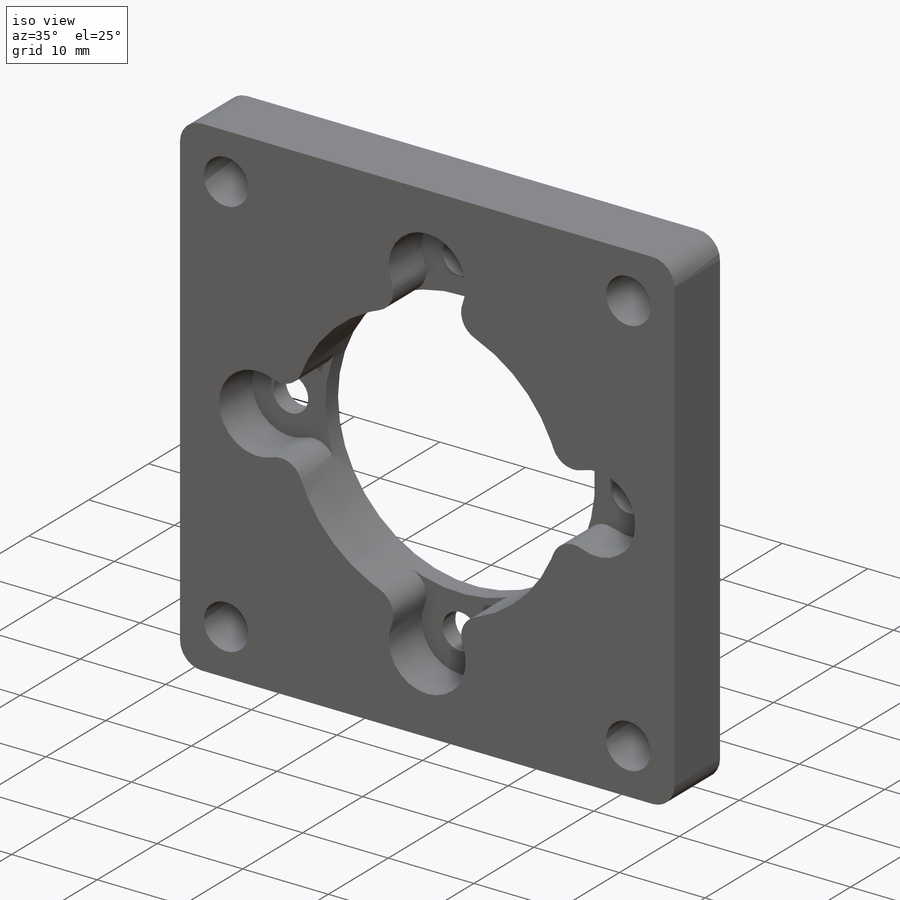
[diagram: iso view]
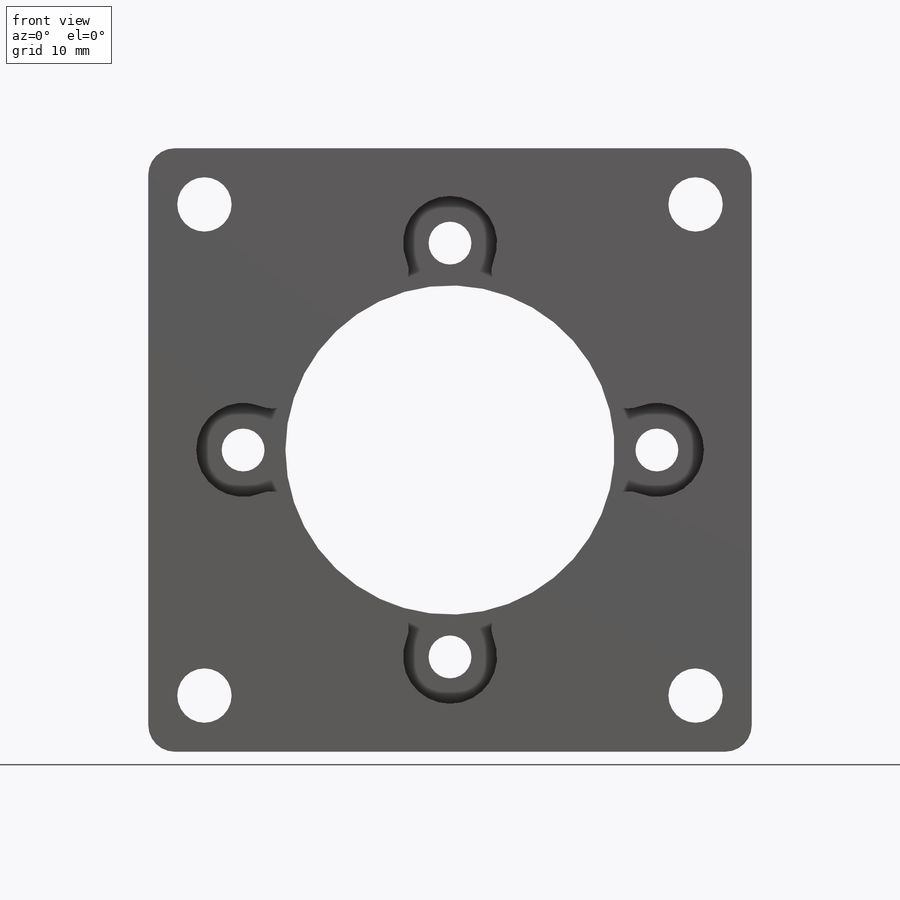
[diagram: front view]
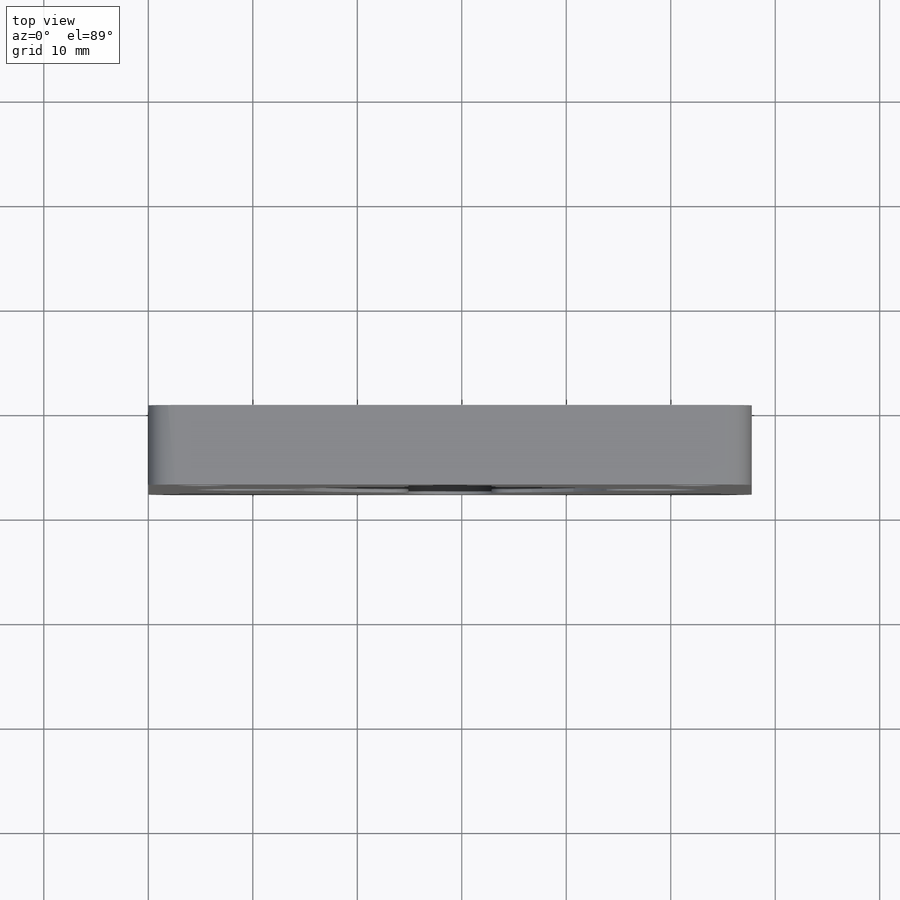
[diagram: top view]
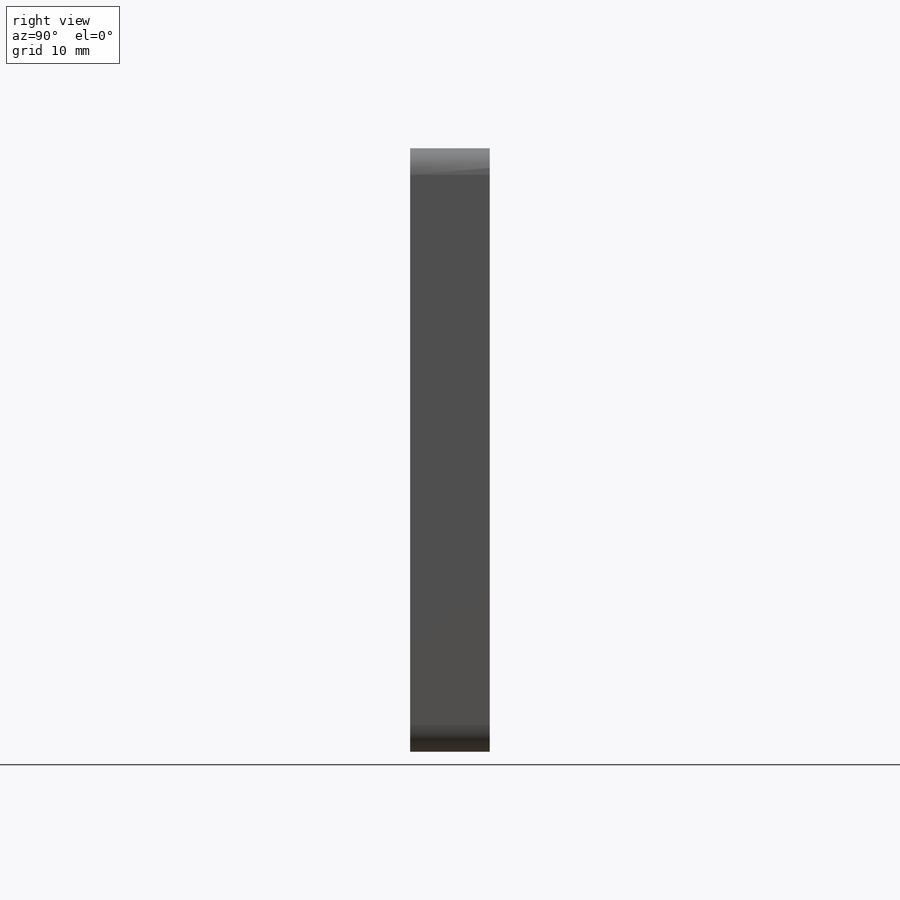
[diagram: right view]
SOLIDWORKS PART (.sldprt)
format: sldprt  version: not decoded by parser v0  size: 257,536 bytes
history: native  units: mm
features: sketch x4, cut_extrude x2, material x1, extrude x1, plane x1, fillet x1 (+13 scaffold rows collapsed)
feature tree (23):
  scaffold x13  (default folders/planes/origin — collapsed)
  material  "Material <not specified>"
  sketch  "Sketch1"  dims[D3=5.2mm D4=31.5mm D1=57.75mm D2=47.0mm]
  extrude  "Boss-Extrude1"  Depth=7.62mm
  sketch  "Sketch2"
  plane  "Plane1"
  sketch  "Sketch3"
  cut_extrude  "Cut-Extrude1"  [1 undecoded]
  sketch  "Sketch4"  dims[D1=9.0mm]
  cut_extrude  "Cut-Extrude2"  Depth=5.5mm
  fillet  "Fillet1"  Radius=2.54mm
decode coverage: 5 of 8 modeling features carry decoded parameters
note: 1 parameter value undecoded
note: suppression state not decoded; provenance and decode notes live in map.json
